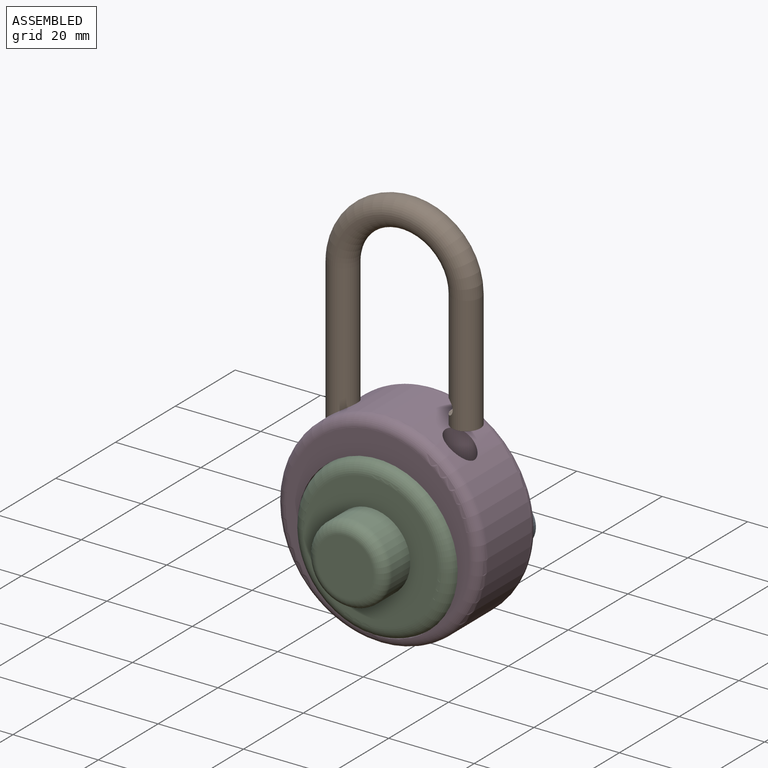
[diagram: assembled view]
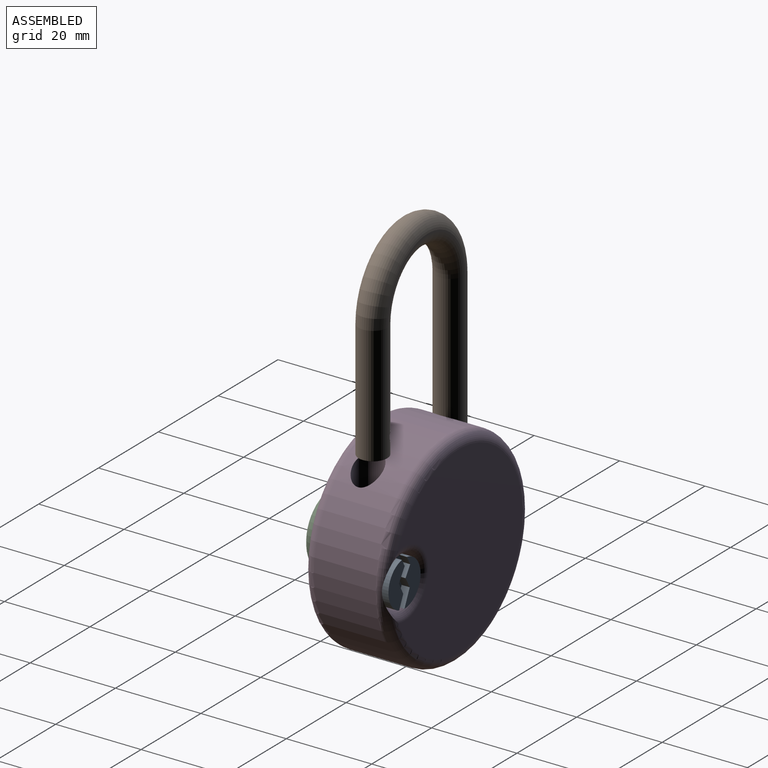
[diagram: assembled view, second angle]
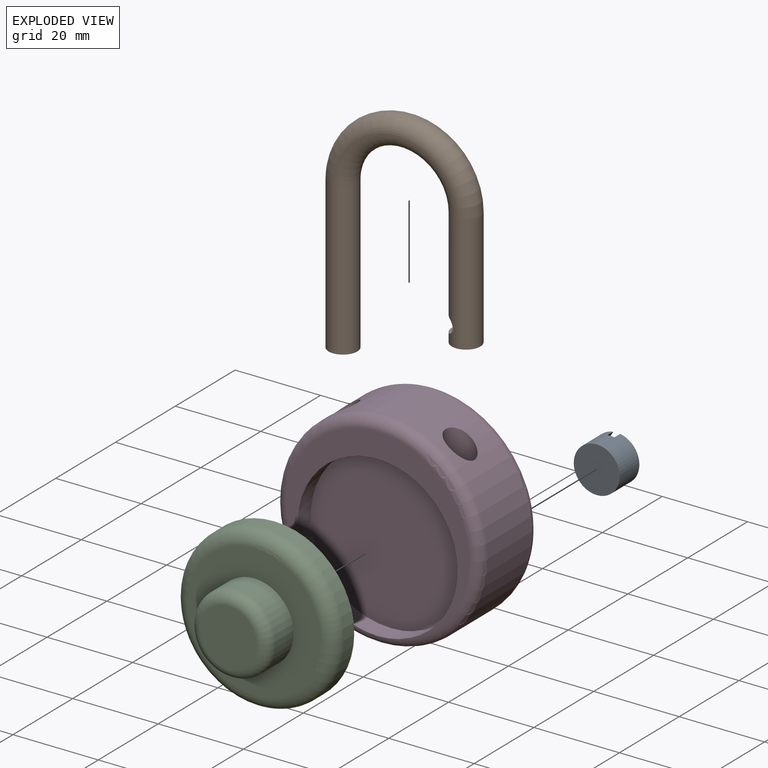
[diagram: exploded view]
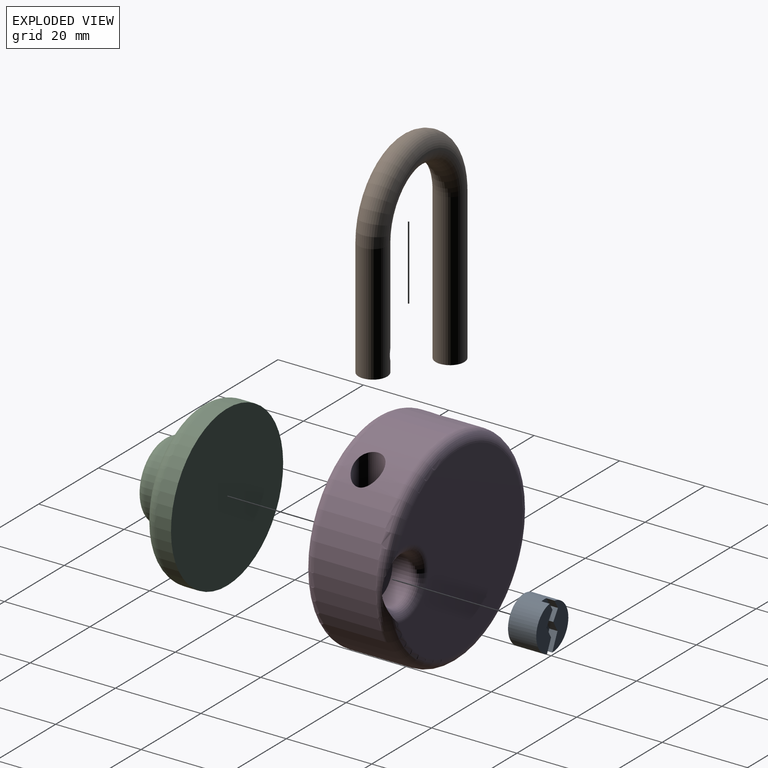
[diagram: exploded view, second angle]
ASSEMBLY  parts=4 mates=3
PART A: 13 faces, bbox 10.7x6.6x10.7 mm
  f0: plane 10.5x6.23mm, normal (0,1,0), area 34mm2, adj f1,f4,f5,f6,f7
  f1: cylinder r=5.37mm len=10.74mm, axis (0,1,0), area 216.3mm2, adj f0,f2,f3,f4,f7,f8,f11,f12
  f2: plane 10.74x10.74mm, normal (0,-1,0), area 90.7mm2, adj f1
  f3: plane 10.09x6.01mm, normal (0,1,0), area 34.9mm2, adj f1,f8,f9,f10,f11
  f4: plane 3.56x2.36mm, normal (-0.83,0,-0.55), area 8.1mm2, adj f0,f1,f5,f12
  f5: plane 2.64x1.91mm, normal (-0.94,0,0.35), area 5.4mm2, adj f0,f4,f6,f12
  f6: plane 2.1x1.92mm, normal (-0.74,0,-0.67), area 5.4mm2, adj f0,f5,f7,f12
  f7: plane 2.14x1.91mm, normal (-0.93,0,0.36), area 4.4mm2, adj f0,f1,f6,f12
  f8: plane 1.91x1.76mm, normal (0.93,0,-0.36), area 3.6mm2, adj f1,f3,f9,f12
  f9: plane 2.68x2.45mm, normal (0.74,0,0.67), area 6.9mm2, adj f3,f8,f10,f12
  f10: plane 2.87x1.91mm, normal (0.94,0,-0.35), area 5.8mm2, adj f3,f9,f11,f12
  f11: plane 2.78x1.91mm, normal (0.83,0,0.55), area 6.4mm2, adj f1,f3,f10,f12
  f12: plane 10.68x4.99mm, normal (0,1,0), area 21.7mm2, adj f1,f4,f5,f6,f7,f8,f9,f10
PART B: 9 faces, bbox 37.4x6.7x54.3 mm
  f0: torus R=13.93mm, axis (0,-1,0), area 922mm2, adj f1,f3
  f1: cylinder r=3.35mm len=27.61mm, axis (0,0,1), area 554.8mm2, adj f0,f2,f5,f6,f7,f8
  f2: plane 6.71x6.71mm, normal (0,0,-1), area 35.3mm2, adj f1
  f3: cylinder r=3.35mm len=35.56mm, axis (0,0,1), area 749.1mm2, adj f0,f4
  f4: plane 6.71x6.71mm, normal (0,0,-1), area 35.3mm2, adj f3
  f5: plane 3.48x0.03mm, normal (1,0,0), area 0.1mm2, adj f1,f6,f7
  f6: cylinder r=1.78mm len=3.55mm, axis (0,-1,0), area 19.8mm2, adj f1,f5,f8
  f7: plane 3.48x0.49mm, normal (0,0,1), area 1.1mm2, adj f1,f5
  f8: plane 3.5x0.51mm, normal (0,0,-1), area 1.1mm2, adj f1,f6
PART C: 7 faces, bbox 40.6x15.3x40.6 mm
  f0: cylinder r=18.76mm len=37.52mm, axis (0,-1,0), area 404.1mm2, adj f1,f6
  f1: plane 37.52x37.52mm, normal (0,1,0), area 1105.4mm2, adj f0
  f2: plane 31.17x31.17mm, normal (0,-1,0), area 497.3mm2, adj f3,f6
  f3: cylinder r=9.19mm len=18.39mm, axis (0,1,0), area 353.6mm2, adj f2,f5
  f4: plane 13.31x13.31mm, normal (0,-1,0), area 139.1mm2, adj f5
  f5: torus R=6.65mm, axis (0,-1,0), area 207.4mm2, adj f3,f4
  f6: torus R=15.58mm, axis (0,-1,0), area 551.6mm2, adj f0,f2
PART D: 14 faces, bbox 54.5x19.6x52 mm
  f0: cylinder r=24.02mm len=48.03mm, axis (0,1,0), area 2098mm2, adj f7,f9,f11,f12
  f1: plane 42.95x40.67mm, normal (0,-1,0), area 348.6mm2, adj f3,f11
  f2: plane 42.95x41.55mm, normal (0,1,0), area 1303.9mm2, adj f12,f13
  f3: cylinder r=18.76mm len=37.52mm, axis (0,-1,0), area 517.6mm2, adj f1,f4,f11
  f4: plane 37.52x37.52mm, normal (0,-1,0), area 1105.4mm2, adj f3
  f5: cylinder r=5.37mm len=10.74mm, axis (0,1,0), area 137.2mm2, adj f6,f13
  f6: plane 10.74x10.74mm, normal (0,1,0), area 90.7mm2, adj f5
  f7: cylinder r=3.35mm len=21.67mm, axis (0,0,-1), area 411mm2, adj f0,f8
  f8: plane 6.71x6.71mm, normal (0,0,1), area 35.3mm2, adj f7
  f9: cylinder r=3.35mm len=21.67mm, axis (0,0,-1), area 410.9mm2, adj f0,f10
  f10: plane 6.71x6.71mm, normal (0,0,1), area 35.3mm2, adj f9
  f11: torus R=21.48mm, axis (0,-1,0), area 575.1mm2, adj f0,f1,f3
  f12: torus R=21.48mm, axis (0,-1,0), area 552.2mm2, adj f0,f2,f13
  f13: torus R=7.91mm, axis (0,-1,0), area 126.3mm2, adj f2,f5,f12
PLACE A rot(axis=(0,-1,0),170.9deg) t=(-387.92,-10.31,169.99)mm
PLACE B rot(axis=(0,0,1),2.9deg) t=(-421.49,-21.04,223.63)mm
PLACE C rot(axis=(0,1,0),120.6deg) t=(-423.71,-32.07,169.73)mm
PLACE D t=(-423.71,-10.31,172.83)mm fixed
MATE revolute A.f1 <-> D.f5  axis (0,-1,0) through (-405.7,-16.91,172.83)mm
MATE revolute C.f0 <-> D.f3  axis (0,1,0) through (-423.71,-25.47,169.73)mm
MATE cylindrical B.f3 <-> D.f7  axis (0,0,-1) through (-437.41,-21.86,188.07)mm
